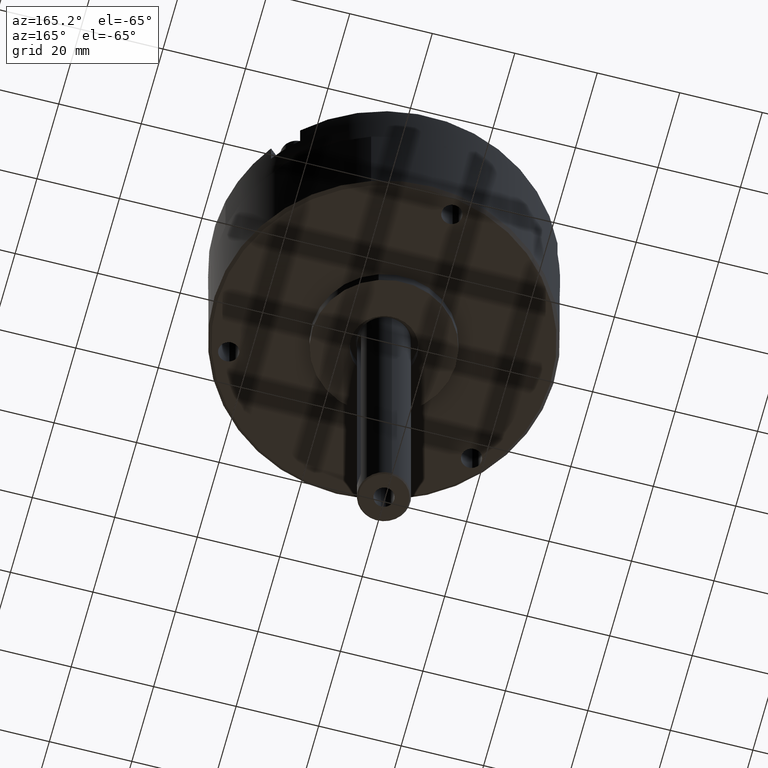
[diagram: clean part render]
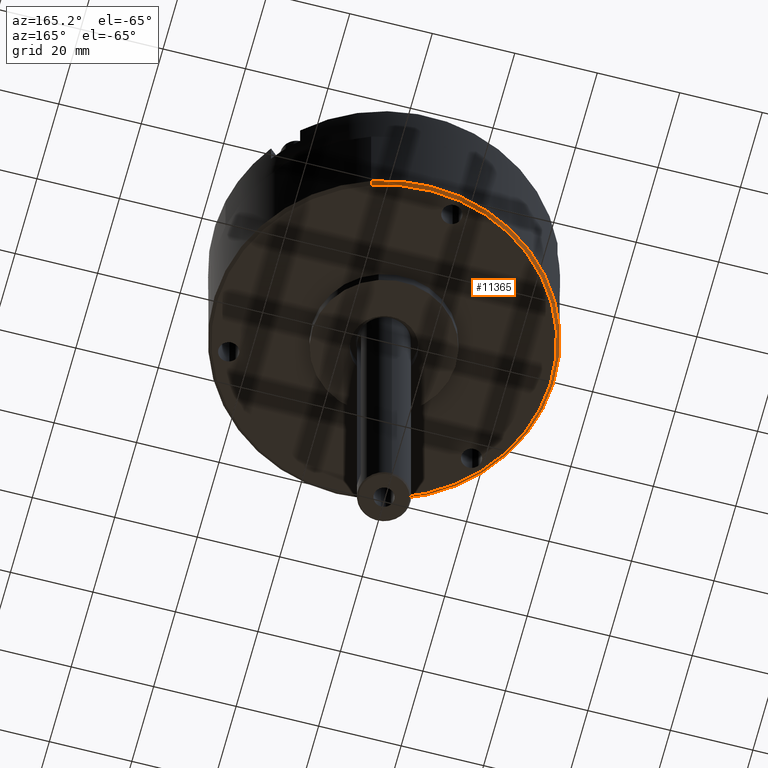
[diagram: same view with one face highlighted and labeled with its STEP entity id]
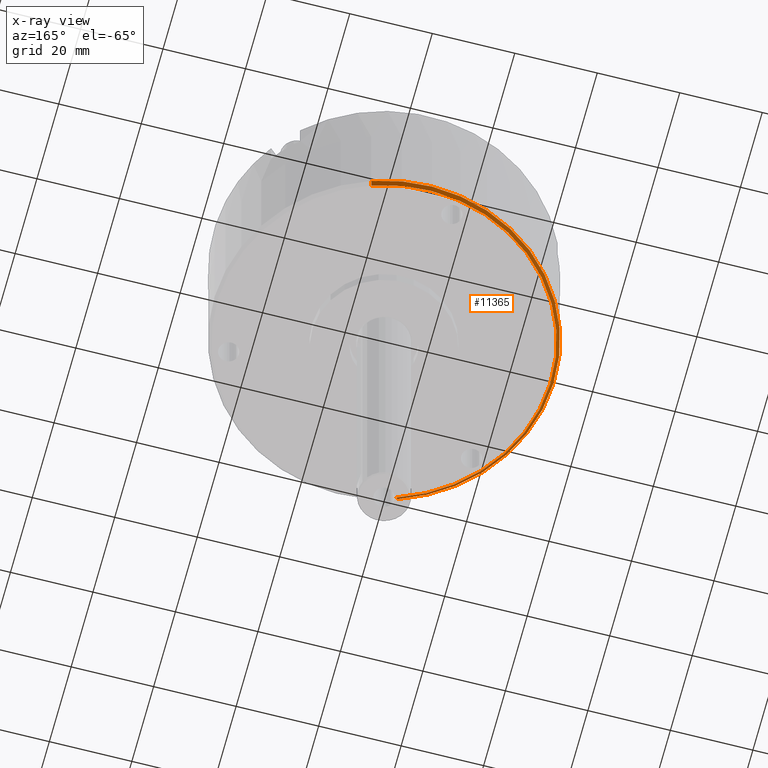
[diagram: x-ray of the same camera — body ghosted, the highlighted face saturated]
A machine part, auxiliary view. The second image highlights one B-rep face of the part: STEP entity #11365.
The next image is the same camera in x-ray: the body ghosted, the highlighted face saturated — about 1% of this face is hidden behind the body in this view.
In plain terms, the highlighted conical surface has half-angle 45 deg.
Its self-contained STEP definition (entity closure, byte-faithful):
#458 = CARTESIAN_POINT ( 'NONE',  ( -1.625000000000000200, 1.990051048614448900E-016, 0.9687499999999981100 ) ) ;
#463 = CARTESIAN_POINT ( 'NONE',  ( 1.593749999999998400, 1.970915942377770300E-016, 1.000000000000000200 ) ) ;
#502 = DIRECTION ( 'NONE',  ( -0.7071067811865444600, 0.0000000000000000000, -0.7071067811865505700 ) ) ;
#503 = VECTOR ( 'NONE', #502, 39.37007874015748100 ) ;
#504 = CARTESIAN_POINT ( 'NONE',  ( -1.593749999999998400, 0.0000000000000000000, 1.000000000000000200 ) ) ;
#505 = CARTESIAN_POINT ( 'NONE',  ( -1.593749999999998400, 0.0000000000000000000, 1.000000000000000200 ) ) ;
#507 = LINE ( 'NONE', #504, #503 ) ;
#833 = CONICAL_SURFACE ( 'NONE', #888, 1.593749999999998400, 0.7853981633974439500 ) ;
#872 = FACE_OUTER_BOUND ( 'NONE', #11376, .T. ) ;
#876 = DIRECTION ( 'NONE',  ( -1.000000000000000000, 0.0000000000000000000, 0.0000000000000000000 ) ) ;
#878 = DIRECTION ( 'NONE',  ( 0.0000000000000000000, 0.0000000000000000000, -1.000000000000000000 ) ) ;
#880 = CARTESIAN_POINT ( 'NONE',  ( 0.0000000000000000000, 0.0000000000000000000, 1.000000000000000200 ) ) ;
#888 = AXIS2_PLACEMENT_3D ( 'NONE', #880, #878, #876 ) ;
#892 = CIRCLE ( 'NONE', #943, 1.625000000000000200 ) ;
#899 = DIRECTION ( 'NONE',  ( 0.7071067811865444600, 8.659560562354893400E-017, -0.7071067811865505700 ) ) ;
#900 = VECTOR ( 'NONE', #899, 39.37007874015748100 ) ;
#908 = CARTESIAN_POINT ( 'NONE',  ( 1.593749999999998400, 1.951780836141091900E-016, 1.000000000000000200 ) ) ;
#909 = LINE ( 'NONE', #908, #900 ) ;
#910 = CARTESIAN_POINT ( 'NONE',  ( 1.625000000000000200, 0.0000000000000000000, 0.9687499999999981100 ) ) ;
#927 = DIRECTION ( 'NONE',  ( -1.000000000000000000, 0.0000000000000000000, 0.0000000000000000000 ) ) ;
#928 = DIRECTION ( 'NONE',  ( 0.0000000000000000000, 0.0000000000000000000, 1.000000000000000000 ) ) ;
#929 = AXIS2_PLACEMENT_3D ( 'NONE', #946, #928, #927 ) ;
#930 = CIRCLE ( 'NONE', #929, 1.593749999999998400 ) ;
#940 = DIRECTION ( 'NONE',  ( -1.000000000000000000, 0.0000000000000000000, 0.0000000000000000000 ) ) ;
#941 = DIRECTION ( 'NONE',  ( 0.0000000000000000000, 0.0000000000000000000, -1.000000000000000000 ) ) ;
#942 = CARTESIAN_POINT ( 'NONE',  ( 0.0000000000000000000, 0.0000000000000000000, 0.9687499999999981100 ) ) ;
#943 = AXIS2_PLACEMENT_3D ( 'NONE', #942, #941, #940 ) ;
#946 = CARTESIAN_POINT ( 'NONE',  ( 0.0000000000000000000, 0.0000000000000000000, 1.000000000000000200 ) ) ;
#11124 = VERTEX_POINT ( 'NONE', #463 ) ;
#11125 = EDGE_CURVE ( 'NONE', #11136, #11132, #507, .T. ) ;
#11127 = ORIENTED_EDGE ( 'NONE', *, *, #11390, .T. ) ;
#11132 = VERTEX_POINT ( 'NONE', #458 ) ;
#11136 = VERTEX_POINT ( 'NONE', #505 ) ;
#11365 = ADVANCED_FACE ( 'NONE', ( #872 ), #833, .T. ) ;
#11376 = EDGE_LOOP ( 'NONE', ( #11400, #11127, #11388, #11403 ) ) ;
#11388 = ORIENTED_EDGE ( 'NONE', *, *, #11405, .F. ) ;
#11389 = VERTEX_POINT ( 'NONE', #910 ) ;
#11390 = EDGE_CURVE ( 'NONE', #11124, #11389, #909, .T. ) ;
#11400 = ORIENTED_EDGE ( 'NONE', *, *, #11410, .F. ) ;
#11403 = ORIENTED_EDGE ( 'NONE', *, *, #11125, .F. ) ;
#11405 = EDGE_CURVE ( 'NONE', #11132, #11389, #892, .T. ) ;
#11410 = EDGE_CURVE ( 'NONE', #11124, #11136, #930, .T. ) ;